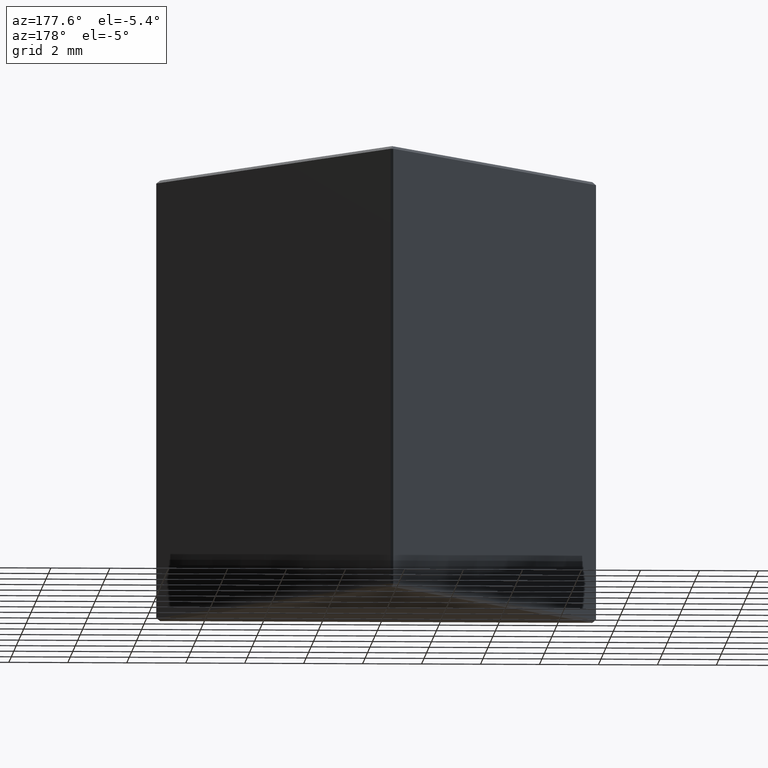
[diagram: clean part render]
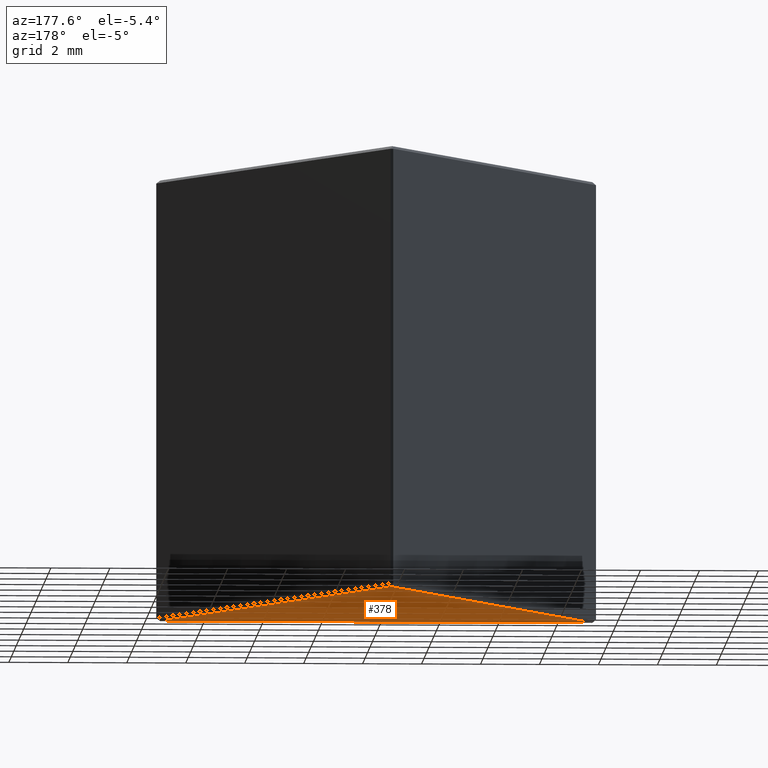
[diagram: same view with one face highlighted and labeled with its STEP entity id]
A machine part, auxiliary view. The second image highlights one B-rep face of the part: STEP entity #378.
In plain terms, the highlighted planar face has unit normal (0, 0, 1).
Its self-contained STEP definition (entity closure, byte-faithful):
#32 = PLANE ( 'NONE',  #70 ) ;
#57 = DIRECTION ( 'NONE',  ( -1.000000000000000000, 0.000000000000000000, 0.000000000000000000 ) ) ;
#69 = FACE_OUTER_BOUND ( 'NONE', #193, .T. ) ;
#70 = AXIS2_PLACEMENT_3D ( 'NONE', #250, #405, #486 ) ;
#76 = VECTOR ( 'NONE', #466, 1000.000000000000114 ) ;
#92 = VECTOR ( 'NONE', #406, 1000.000000000000114 ) ;
#103 = ORIENTED_EDGE ( 'NONE', *, *, #450, .T. ) ;
#135 = VERTEX_POINT ( 'NONE', #390 ) ;
#166 = ORIENTED_EDGE ( 'NONE', *, *, #226, .T. ) ;
#190 = CARTESIAN_POINT ( 'NONE',  ( -7.120345233597996458E-16, -0.1999999999999990674, 0.000000000000000000 ) ) ;
#193 = EDGE_LOOP ( 'NONE', ( #166, #424, #103 ) ) ;
#204 = LINE ( 'NONE', #327, #92 ) ;
#225 = LINE ( 'NONE', #259, #296 ) ;
#226 = EDGE_CURVE ( 'NONE', #232, #135, #421, .T. ) ;
#232 = VERTEX_POINT ( 'NONE', #190 ) ;
#250 = CARTESIAN_POINT ( 'NONE',  ( 0.000000000000000000, 0.000000000000000000, 0.000000000000000000 ) ) ;
#259 = CARTESIAN_POINT ( 'NONE',  ( 0.000000000000000000, -12.89038105676657864, 0.000000000000000000 ) ) ;
#296 = VECTOR ( 'NONE', #57, 1000.000000000000000 ) ;
#325 = VERTEX_POINT ( 'NONE', #470 ) ;
#327 = CARTESIAN_POINT ( 'NONE',  ( 0.08660254037844293540, -0.04999999999999946848, 0.000000000000000000 ) ) ;
#374 = EDGE_CURVE ( 'NONE', #135, #325, #225, .T. ) ;
#378 = ADVANCED_FACE ( 'NONE', ( #69 ), #32, .F. ) ;
#390 = CARTESIAN_POINT ( 'NONE',  ( 7.326794919243113213, -12.89038105676657864, 0.000000000000000000 ) ) ;
#405 = DIRECTION ( 'NONE',  ( 0.000000000000000000, 0.000000000000000000, 1.000000000000000000 ) ) ;
#406 = DIRECTION ( 'NONE',  ( 0.5000000000000001110, 0.8660254037844385966, 0.000000000000000000 ) ) ;
#421 = LINE ( 'NONE', #461, #76 ) ;
#424 = ORIENTED_EDGE ( 'NONE', *, *, #374, .T. ) ;
#450 = EDGE_CURVE ( 'NONE', #325, #232, #204, .T. ) ;
#461 = CARTESIAN_POINT ( 'NONE',  ( -0.08660254037844410113, -0.05000000000000014155, 0.000000000000000000 ) ) ;
#466 = DIRECTION ( 'NONE',  ( 0.5000000000000001110, -0.8660254037844385966, 0.000000000000000000 ) ) ;
#470 = CARTESIAN_POINT ( 'NONE',  ( -7.326794919243114101, -12.89038105676657864, 0.000000000000000000 ) ) ;
#486 = DIRECTION ( 'NONE',  ( 1.000000000000000000, 0.000000000000000000, -0.000000000000000000 ) ) ;